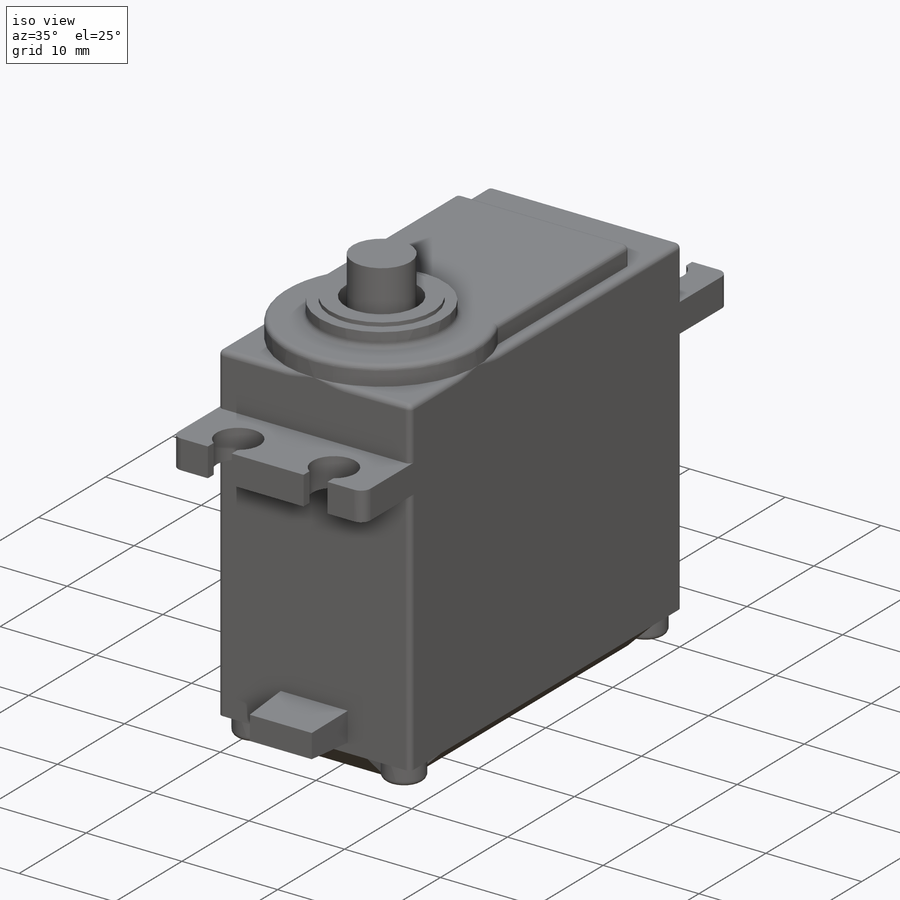
[diagram: iso view]
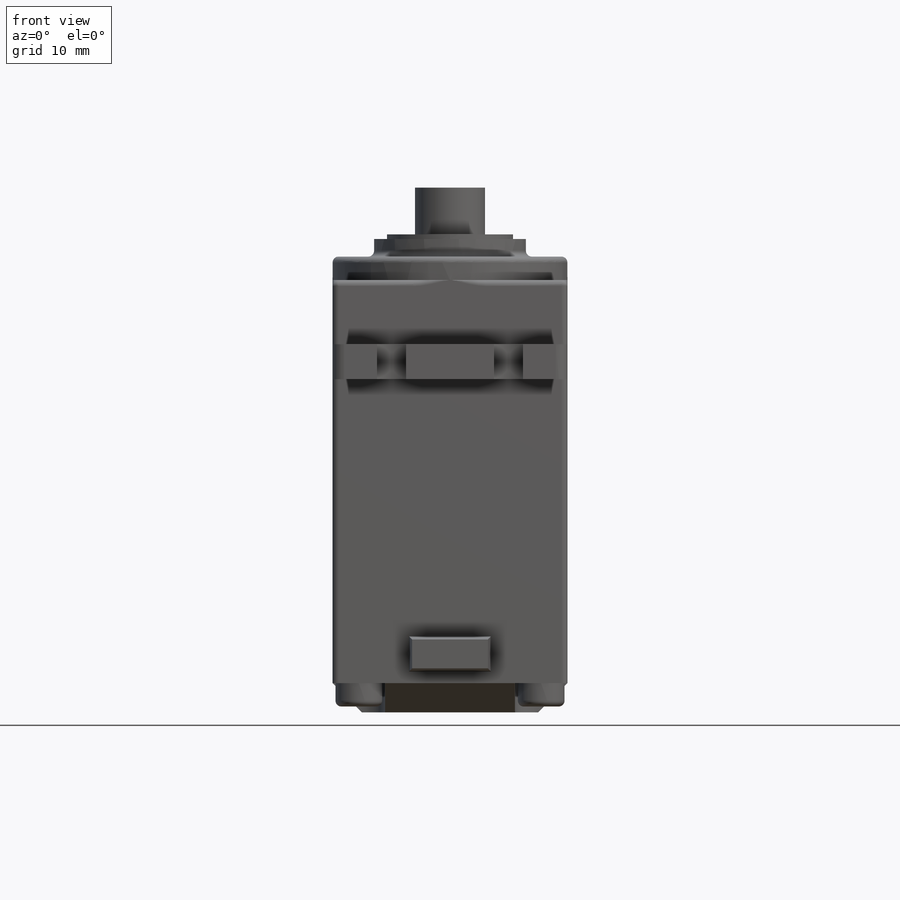
[diagram: front view]
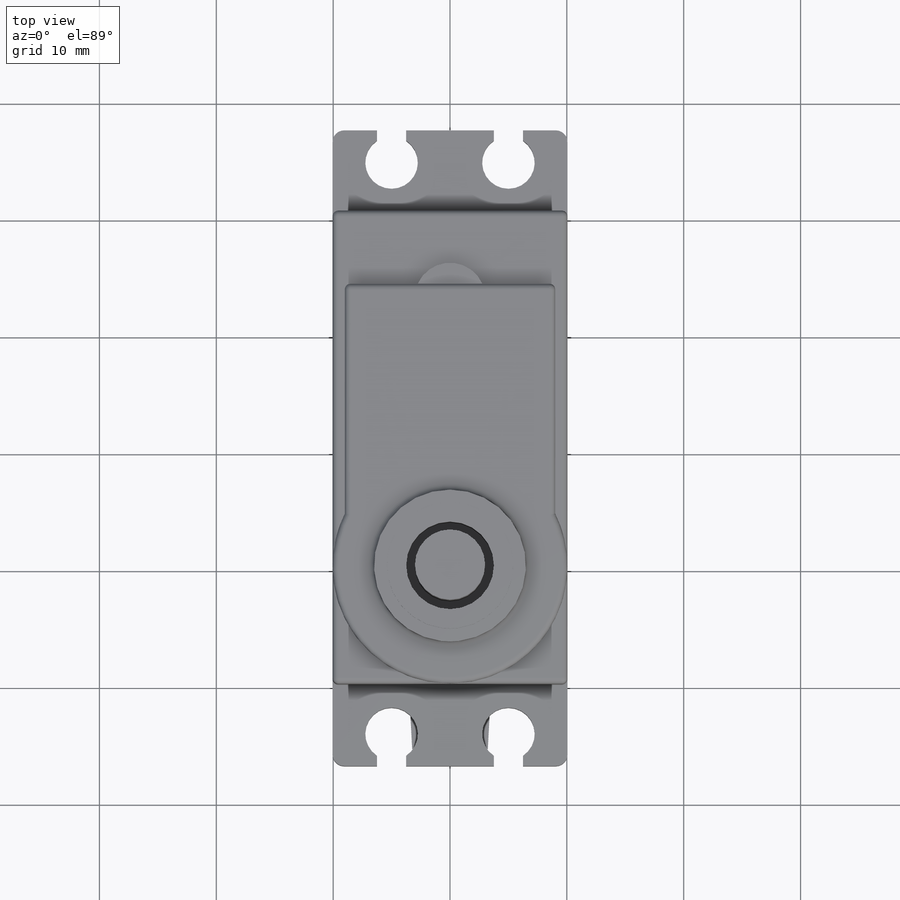
[diagram: top view]
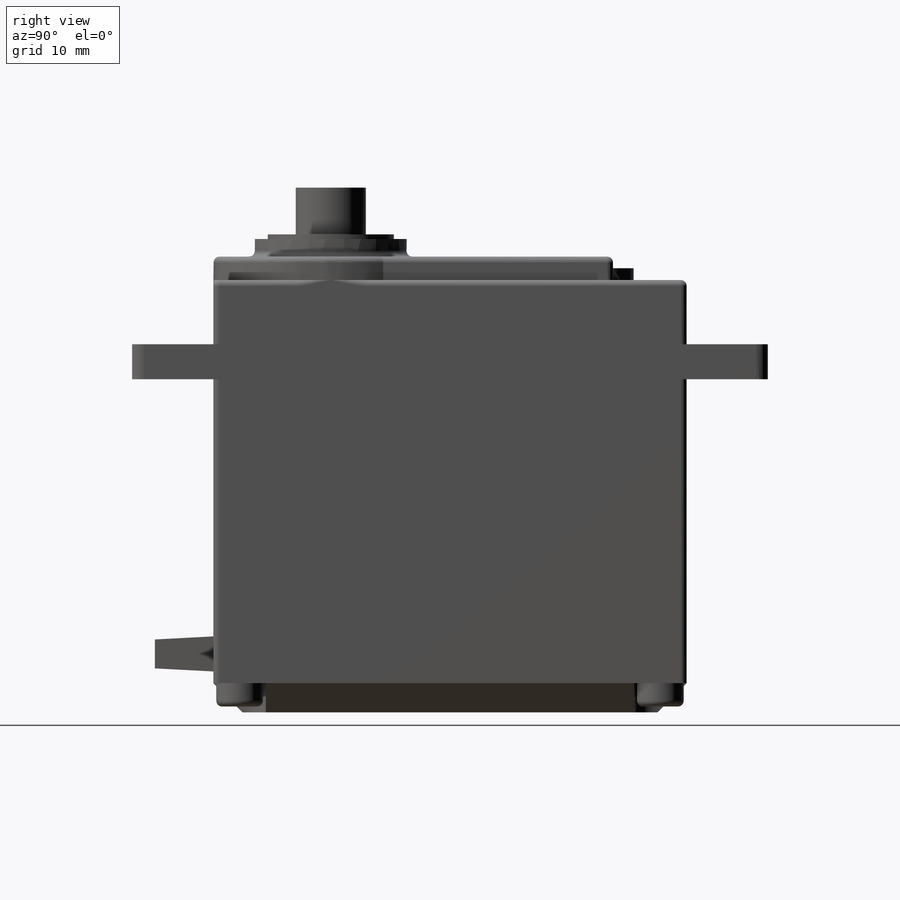
[diagram: right view]
SOLIDWORKS PART (.sldprt)
format: sldprt  version: not decoded by parser v0  size: 799,744 bytes
history: native  units: mm
features: sketch x14, extrude x10, plane x5, cut_extrude x4, fillet x4, mirror x3, material x1, chamfer x1 (+8 scaffold rows collapsed)
feature tree (50):
  scaffold x8  (default folders/planes/origin — collapsed)
  material  "Material <sin especificar>"
  plane  "Alzado"
  plane  "Planta"
  plane  "Vista lateral"
  sketch  "Croquis1"  dims[D1=40.5mm D2=20.1mm]
  extrude  "Saliente-Extruir1"  Depth=28.5mm
  sketch  "Croquis2"  dims[D1=54.4mm]
  extrude  "Saliente-Extruir2"  Depth=3mm
  sketch  "Croquis3"
  extrude  "Saliente-Extruir3"  Depth=5.5mm
  sketch  "Croquis4"  dims[D1=18.0mm D2=34.2mm]
  extrude  "Saliente-Extruir4"  Depth=2mm
  sketch  "Croquis5"  dims[D1=13.0mm]
  extrude  "Saliente-Extruir5"  Depth=1.5mm
  sketch  "Croquis6"  dims[D1=10.8mm]
  extrude  "Saliente-Extruir6"  Depth=0.4mm
  sketch  "Croquis7"  dims[D1=7.5mm]
  cut_extrude  "Cortar-Extruir1"  Depth=5mm
  sketch  "Croquis8"  dims[D1=6.0mm]
  extrude  "Saliente-Extruir7"  Depth=9mm
  sketch  "Croquis9"  dims[D1=4.5mm D2=10.0mm D3=2.75mm D4=2.5mm]
  cut_extrude  "Cortar-Extruir2"  [1 undecoded]
  plane  "Plano1"
  mirror  "Simetría1"
  fillet  "Redondeo1"  Radius=1mm
  plane  "Plano2"
  sketch  "Croquis10"  dims[D1=4.5mm]
  cut_extrude  "Cortar-Extruir3"  Depth=2.5mm
  sketch  "Croquis11"  dims[D1=4.0mm]
  extrude  "Saliente-Extruir8"  Depth=2mm
  fillet  "Redondeo2"  Radius=0.5mm
  sketch  "Croquis12"  dims[D1=0.5mm D2=0.5mm]
  cut_extrude  "Cortar-Extruir4"  Depth=1mm
  fillet  "Redondeo3"  Radius=0.25mm
  mirror  "Simetría4"
  mirror  "Simetría5"
  sketch  "Croquis13"
  extrude  "Saliente-Extruir9"  Depth=1mm
  fillet  "Redondeo4"  Radius=0.5mm
  chamfer  "Chaflán1"  Distance=2.5mm Angle=45deg
  sketch  "Croquis14"  dims[D1=7.0mm D2=3.0mm D3=3.5mm]
  extrude  "Saliente-Extruir10"  Depth=5mm
decode coverage: 30 of 36 modeling features carry decoded parameters
note: 1 parameter value undecoded
note: suppression state not decoded; provenance and decode notes live in map.json
